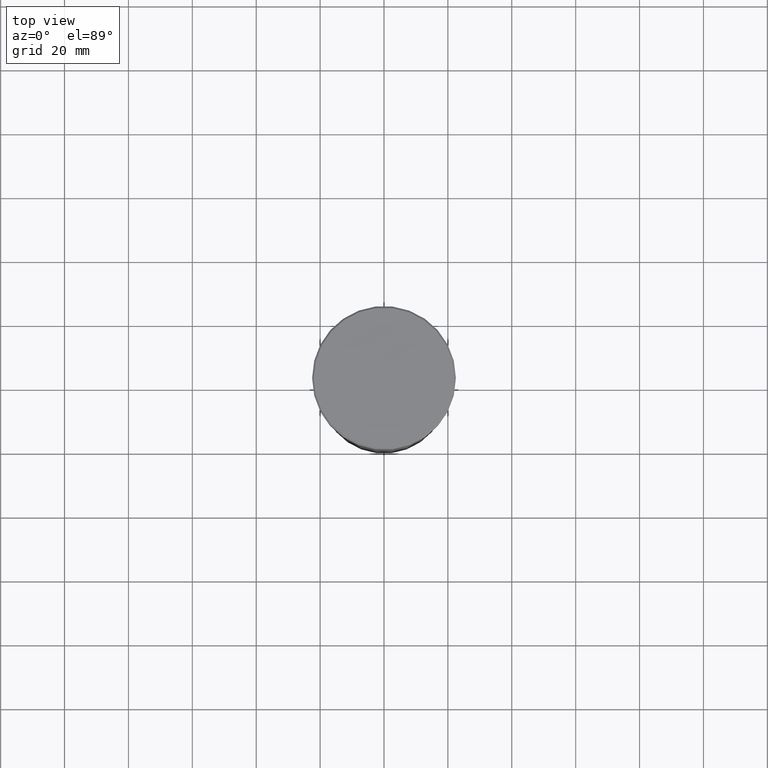
[diagram: clean part render]
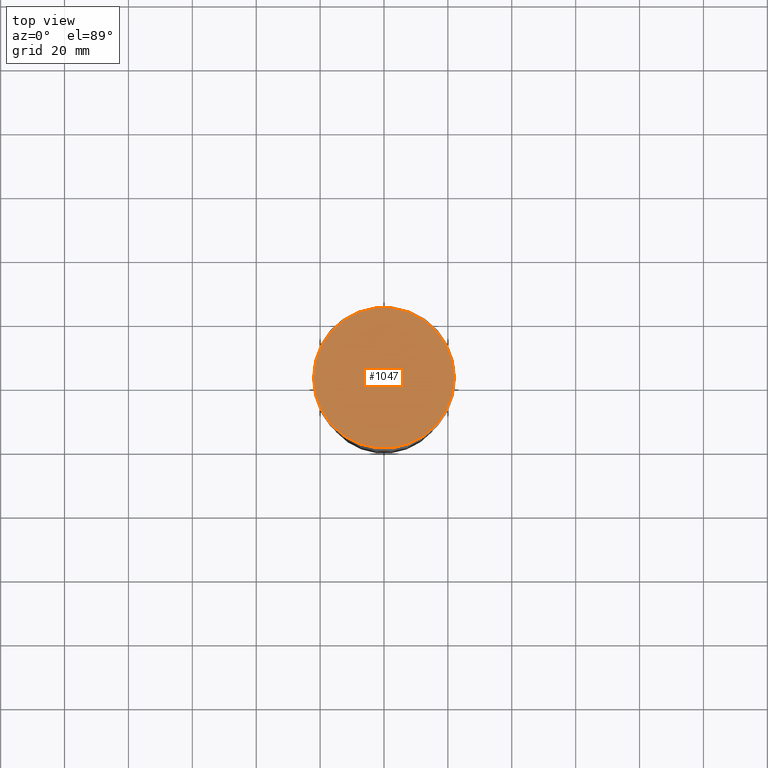
[diagram: same view with one face highlighted and labeled with its STEP entity id]
A machine part, top view. The second image highlights one B-rep face of the part: STEP entity #1047.
In plain terms, the highlighted planar face has unit normal (0, -0, 1).
Its self-contained STEP definition (entity closure, byte-faithful):
#49 = CIRCLE ( 'NONE', #698, 22.00000000000000711 ) ;
#56 = EDGE_LOOP ( 'NONE', ( #797, #782 ) ) ;
#98 = CARTESIAN_POINT ( 'NONE',  ( 22.00000000000000711, 2.724839128102860991E-15, 0.000000000000000000 ) ) ;
#135 = CARTESIAN_POINT ( 'NONE',  ( 0.000000000000000000, 0.000000000000000000, 0.000000000000000000 ) ) ;
#285 = DIRECTION ( 'NONE',  ( -0.000000000000000000, -0.000000000000000000, 1.000000000000000000 ) ) ;
#350 = CIRCLE ( 'NONE', #667, 22.00000000000000711 ) ;
#446 = EDGE_CURVE ( 'NONE', #565, #726, #49, .T. ) ;
#458 = DIRECTION ( 'NONE',  ( 1.000000000000000000, 0.000000000000000000, 0.000000000000000000 ) ) ;
#463 = FACE_OUTER_BOUND ( 'NONE', #56, .T. ) ;
#467 = CARTESIAN_POINT ( 'NONE',  ( 0.000000000000000000, 0.000000000000000000, 0.000000000000000000 ) ) ;
#478 = DIRECTION ( 'NONE',  ( 1.000000000000000000, 0.000000000000000000, 0.000000000000000000 ) ) ;
#565 = VERTEX_POINT ( 'NONE', #709 ) ;
#597 = EDGE_CURVE ( 'NONE', #726, #565, #350, .T. ) ;
#638 = PLANE ( 'NONE',  #795 ) ;
#667 = AXIS2_PLACEMENT_3D ( 'NONE', #467, #285, #458 ) ;
#698 = AXIS2_PLACEMENT_3D ( 'NONE', #986, #897, #478 ) ;
#709 = CARTESIAN_POINT ( 'NONE',  ( -22.00000000000000711, 0.000000000000000000, 0.000000000000000000 ) ) ;
#726 = VERTEX_POINT ( 'NONE', #98 ) ;
#782 = ORIENTED_EDGE ( 'NONE', *, *, #597, .T. ) ;
#795 = AXIS2_PLACEMENT_3D ( 'NONE', #135, #975, #972 ) ;
#797 = ORIENTED_EDGE ( 'NONE', *, *, #446, .T. ) ;
#897 = DIRECTION ( 'NONE',  ( -0.000000000000000000, -0.000000000000000000, 1.000000000000000000 ) ) ;
#972 = DIRECTION ( 'NONE',  ( 1.000000000000000000, 0.000000000000000000, 0.000000000000000000 ) ) ;
#975 = DIRECTION ( 'NONE',  ( 0.000000000000000000, -0.000000000000000000, 1.000000000000000000 ) ) ;
#986 = CARTESIAN_POINT ( 'NONE',  ( 0.000000000000000000, 0.000000000000000000, 0.000000000000000000 ) ) ;
#1047 = ADVANCED_FACE ( 'NONE', ( #463 ), #638, .T. ) ;